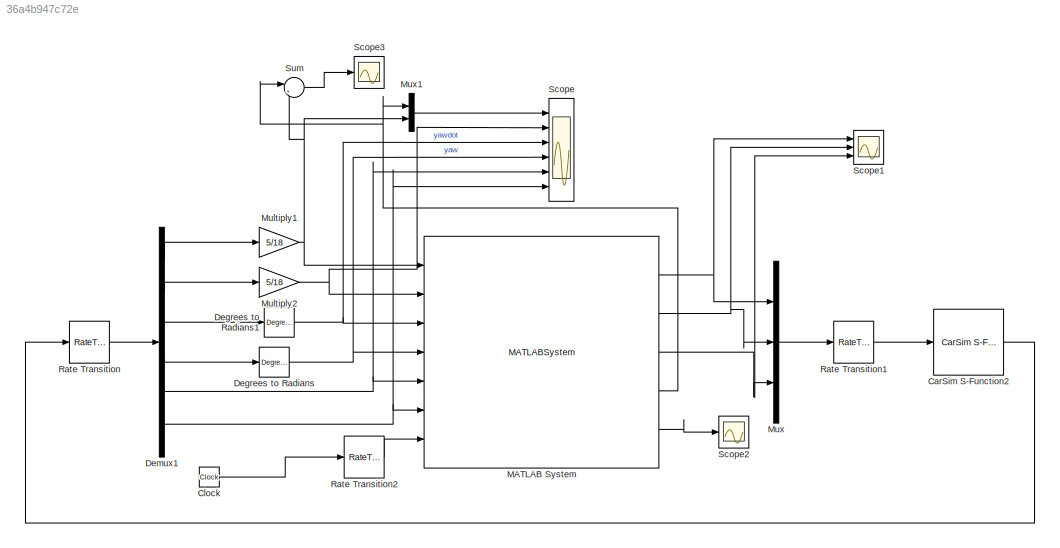
MODEL slx_36a4b947c72e
KIND model
CONFIG AbsTol = auto
CONFIG EnableMultiTasking = off
CONFIG FixedStep = .001
CONFIG MaxStep = 0.01
CONFIG MinStep = auto
CONFIG RelTol = 1e-3
CONFIG SampleTimeConstraint = Unconstrained
CONFIG Solver = FixedStepAuto
CONFIG SolverName = FixedStepAuto
CONFIG StartTime = 0.0
CONFIG StopTime = 433
BLOCK [Reference] CarSim S-Function2  REF=Solver_SF/CarSim S-Function2
  AttributesFormatString = Vehicle Code: %<VehicleCode>
  Ports = [1, 1]
  Priority = 1
  SourceBlock = Solver_SF/CarSim S-Function2
  SourceType = Vehicle math model library
BLOCK [Clock] Clock
BLOCK [Reference] Degrees to Radians  REF=simulink_extras/Transformations/Degrees to
Radians
  Ports = [1, 1]
  SourceBlock = simulink_extras/Transformations/Degrees to\nRadians
  SourceProductBaseCode = SL
  SourceProductName = Simulink
  SourceType = DegreesToRadians
BLOCK [Reference] Degrees to Radians1  REF=simulink_extras/Transformations/Degrees to
Radians
  Ports = [1, 1]
  SourceBlock = simulink_extras/Transformations/Degrees to\nRadians
  SourceProductBaseCode = SL
  SourceProductName = Simulink
  SourceType = DegreesToRadians
BLOCK [Demux] Demux1
  DisplayOption = bar
  Outputs = 6
  Ports = [1, 6]
BLOCK [MATLABSystem] MATLAB System
  MaskDisplay = disp('casadi_block_presented');\nport_label('input',1,'xd_in');\nport_label('input',2,'yd_in');\nport_label('input',3,'yawd_in');\nport_label('input',4,'yaw_in');\nport_label('input',5,'x_in');\nport_label('input',6,'y_in');\nport_label('input',7,'t');\nport_label('output',1,'delta_out');\nport_label('output',2,'acc_out');\nport_label('output',3,'break_out');\nport_label('output',4,'vref');\nport_label('outpu...<+12ch>
  MaskType = casadi_block_presented
  Ports = [7, 5]
  SimulateUsing = Interpreted execution
  System = casadi_block_presented
BLOCK [Gain] Multiply1
  Gain = 5/18
  OutDataTypeStr = Inherit: Inherit via internal rule
  ParamDataTypeStr = Inherit: Inherit via internal rule
  SaturateOnIntegerOverflow = off
BLOCK [Gain] Multiply2
  Gain = 5/18
  OutDataTypeStr = Inherit: Inherit via internal rule
  ParamDataTypeStr = Inherit: Inherit via internal rule
  SaturateOnIntegerOverflow = off
BLOCK [Mux] Mux
  DisplayOption = bar
  Inputs = 3
  Ports = [3, 1]
BLOCK [Mux] Mux1
  DisplayOption = bar
  Inputs = 2
  Ports = [2, 1]
BLOCK [RateTransition] Rate Transition
  OutPortSampleTime = 0.02
BLOCK [RateTransition] Rate Transition1
  OutPortSampleTime = 0.001
BLOCK [RateTransition] Rate Transition2
  OutPortSampleTime = 0.02
BLOCK [Scope] Scope
  Floating = off
  NumInputPorts = 6
  Ports = [6]
  ScopeSpecificationString = Simulink.scopes.TimeScopeBlockCfg('CurrentConfiguration', extmgr.ConfigurationSet(extmgr.Configuration('Core','General UI',true,'FigureColor',[1 1 1]),extmgr.Configuration('Core','Source UI',true),extmgr.Configuration('Sources','WiredSimulink',true,'DataLoggingVariableName','ScopeData1'),extmgr.Configuration('Visuals','Time Domain',true,'SerializedDisplays',{struct('MinYLimReal','-1.125','MaxYLimR...<+6236ch>
BLOCK [Scope] Scope1
  Floating = off
  NumInputPorts = 3
  Ports = [3]
  ScopeSpecificationString = Simulink.scopes.TimeScopeBlockCfg('CurrentConfiguration', extmgr.ConfigurationSet(extmgr.Configuration('Core','General UI',true,'FigureColor',[1 1 1]),extmgr.Configuration('Core','Source UI',true),extmgr.Configuration('Sources','WiredSimulink',true),extmgr.Configuration('Visuals','Time Domain',true,'SerializedDisplays',{struct('MinYLimReal','-54.98681','MaxYLimReal','6.52409','YLabelReal','steerin...<+3315ch>
BLOCK [Scope] Scope2
  Floating = off
  NumInputPorts = 1
  Ports = [1]
  ScopeSpecificationString = Simulink.scopes.TimeScopeBlockCfg('CurrentConfiguration', extmgr.ConfigurationSet(extmgr.Configuration('Core','General UI',true,'FigureColor',[1 1 1]),extmgr.Configuration('Core','Source UI',true),extmgr.Configuration('Sources','WiredSimulink',true,'DataLoggingVariableName','ScopeData1'),extmgr.Configuration('Visuals','Time Domain',true,'PlotType','Stairs','SerializedDisplays',{struct('MinYLimReal...<+2471ch>
BLOCK [Scope] Scope3
  Floating = off
  NumInputPorts = 1
  Ports = [1]
  ScopeSpecificationString = Simulink.scopes.TimeScopeBlockCfg('CurrentConfiguration', extmgr.ConfigurationSet(extmgr.Configuration('Core','General UI',true,'FigureColor',[1 1 1]),extmgr.Configuration('Core','Source UI',true),extmgr.Configuration('Sources','WiredSimulink',true,'DataLoggingVariableName','ScopeData1'),extmgr.Configuration('Visuals','Time Domain',true,'PlotType','Stairs','SerializedDisplays',{struct('MinYLimReal...<+2471ch>
BLOCK [Sum] Sum
  IconShape = round
  InputSameDT = off
  Inputs = |+-
  OutDataTypeStr = Inherit: Inherit via internal rule
  Ports = [2, 1]
  SaturateOnIntegerOverflow = off
LINE CarSim S-Function2:1 -> Rate Transition:1
LINE Clock:1 -> Rate Transition2:1
NET Degrees to Radians1:1 -> MATLAB System:3, Scope:3
NET Degrees to Radians:1 -> MATLAB System:4, Scope:4
LINE Demux1:1 -> Multiply1:1
LINE Demux1:2 -> Multiply2:1
LINE Demux1:3 -> Degrees to Radians1:1
LINE Demux1:4 -> Degrees to Radians:1
NET Demux1:5 -> MATLAB System:5, Scope:5
NET Demux1:6 -> MATLAB System:6, Scope:6
NET MATLAB System:1 -> Mux:1, Scope1:1
NET MATLAB System:2 -> Mux:2, Scope1:2
NET MATLAB System:3 -> Mux:3, Scope1:3
NET MATLAB System:4 -> Mux1:1, Sum:1
LINE MATLAB System:5 -> Scope2:1
NET Multiply1:1 -> MATLAB System:1, Mux1:2, Sum:2
NET Multiply2:1 -> MATLAB System:2, Scope:2
LINE Mux1:1 -> Scope:1
LINE Mux:1 -> Rate Transition1:1
LINE Rate Transition1:1 -> CarSim S-Function2:1
LINE Rate Transition2:1 -> MATLAB System:7
LINE Rate Transition:1 -> Demux1:1
LINE Sum:1 -> Scope3:1
note: NET lines group one-source signal fan-out (src -> all destinations, sorted); 1:1 wires keep LINE
